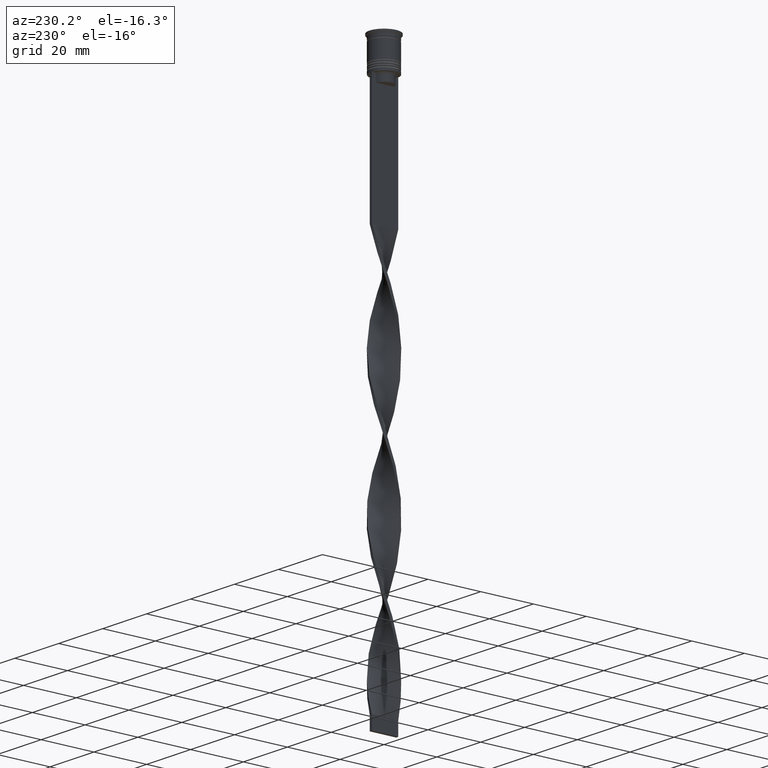
[diagram: clean part render]
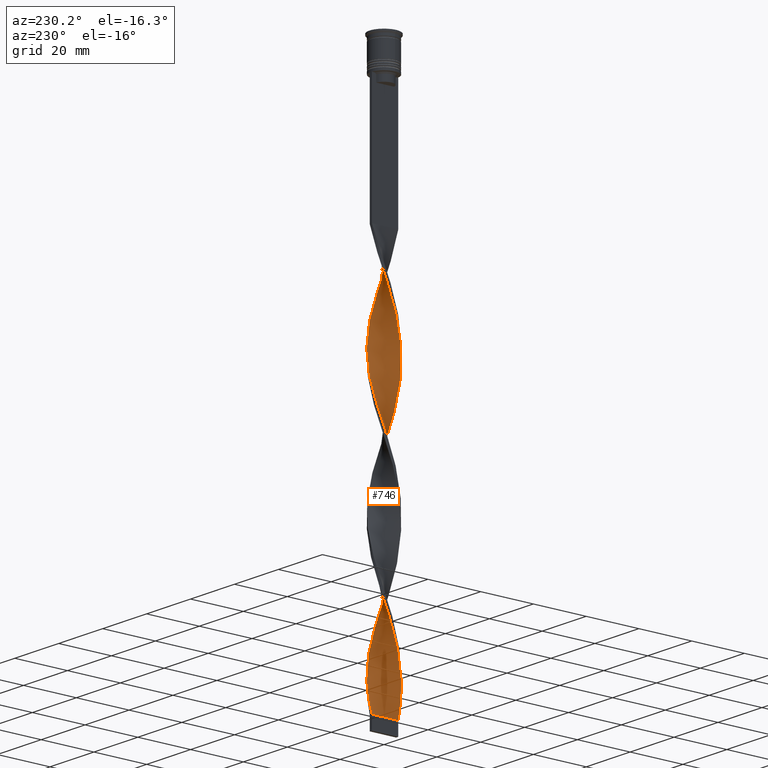
[diagram: same view with one face highlighted and labeled with its STEP entity id]
A machine part, auxiliary view. The second image highlights one B-rep face of the part: STEP entity #746.
In plain terms, the highlighted face is a freeform B-spline surface patch.
Its self-contained STEP definition (entity closure, byte-faithful):
#6 = CARTESIAN_POINT ( 'NONE',  ( 4.291403454590825284, -2.614164568256161836, -172.4411764705882035 ) ) ;
#15 = CARTESIAN_POINT ( 'NONE',  ( 4.863729793964998827, -1.345712789752187000, -176.8235294117647243 ) ) ;
#27 = CARTESIAN_POINT ( 'NONE',  ( -2.207052246521973515, -4.514301760086746995, -149.0686274509803866 ) ) ;
#38 = CARTESIAN_POINT ( 'NONE',  ( -5.021420494578371141, -0.5021420494578362481, -133.0000000000000000 ) ) ;
#56 = CARTESIAN_POINT ( 'NONE',  ( 4.252947278887042160, 2.676273424560221770, -189.9705882352941160 ) ) ;
#68 = CARTESIAN_POINT ( 'NONE',  ( -3.426799919866744482, -3.704571868705844206, -97.94117647058824616 ) ) ;
#70 = CARTESIAN_POINT ( 'NONE',  ( 3.688768818211569211, 3.412181795536400664, -93.55882352941176805 ) ) ;
#95 = CARTESIAN_POINT ( 'NONE',  ( 0.8912038472716534709, 4.967148691534572613, -203.1176470588235361 ) ) ;
#108 = CARTESIAN_POINT ( 'NONE',  ( 4.945959710900135420, -0.8874021287740040398, -78.95098039215686470 ) ) ;
#116 = CARTESIAN_POINT ( 'NONE',  ( -4.863729793964998827, 1.345712789752186778, -127.1568627450980102 ) ) ;
#128 = CARTESIAN_POINT ( 'NONE',  ( -4.291403454590827060, -2.614164568256162280, -93.55882352941176805 ) ) ;
#129 = CARTESIAN_POINT ( 'NONE',  ( -4.863729793965000603, -1.345712789752187222, -188.5098039215686185 ) ) ;
#145 = CARTESIAN_POINT ( 'NONE',  ( 4.932536701743522656, -0.9592088854640269391, -131.5392156862745310 ) ) ;
#146 = CARTESIAN_POINT ( 'NONE',  ( 1.410234138924802538, -4.822990739511222813, -61.42156862745097357 ) ) ;
#148 = CARTESIAN_POINT ( 'NONE',  ( -0.03668176878985203448, 5.046331823121015248, -106.7058823529412024 ) ) ;
#165 = CARTESIAN_POINT ( 'NONE',  ( 4.291403454590827948, 2.614164568256161836, -143.2254901960784537 ) ) ;
#166 = CARTESIAN_POINT ( 'NONE',  ( -2.998973759622457269, 4.031892407926575217, -169.5196078431372371 ) ) ;
#189 = CARTESIAN_POINT ( 'NONE',  ( -4.533641475362164996, -2.216507476658135189, -191.4313725490196134 ) ) ;
#190 = CARTESIAN_POINT ( 'NONE',  ( -4.945959710900137196, -0.8874021287740051500, -187.0490196078431211 ) ) ;
#207 = CARTESIAN_POINT ( 'NONE',  ( -0.9633182312101484790, -4.953668176878986529, -206.0392156862745026 ) ) ;
#208 = CARTESIAN_POINT ( 'NONE',  ( -5.024805061206825130, 0.03652529083100775065, -184.1274509803921546 ) ) ;
#210 = CARTESIAN_POINT ( 'NONE',  ( -3.057269382251586176, -3.987869597209393824, -99.40196078431372939 ) ) ;
#226 = CARTESIAN_POINT ( 'NONE',  ( -1.410234138924802982, -4.822990739511224589, -204.5784313725490335 ) ) ;
#227 = CARTESIAN_POINT ( 'NONE',  ( -2.625363907848424105, 4.309788251477359999, -168.0588235294117680 ) ) ;
#229 = CARTESIAN_POINT ( 'NONE',  ( 1.339972216233587865, -4.842981980115355967, -114.0098039215686185 ) ) ;
#247 = CARTESIAN_POINT ( 'NONE',  ( 0.9633182312101491451, 4.953668176878986529, -156.3725490196078454 ) ) ;
#248 = CARTESIAN_POINT ( 'NONE',  ( -4.533641475362164996, -2.216507476658135189, -92.09803921568628482 ) ) ;
#270 = CARTESIAN_POINT ( 'NONE',  ( -3.426799919866744037, -3.704571868705844206, -97.94117647058824616 ) ) ;
#274 = CARTESIAN_POINT ( 'NONE',  ( -5.021420494578372029, -0.5021420494578362481, -133.0000000000000000 ) ) ;
#290 = CARTESIAN_POINT ( 'NONE',  ( -4.932536701743521768, 0.9592088854640273832, -81.87254901960783116 ) ) ;
#296 = CARTESIAN_POINT ( 'NONE',  ( -3.372583611396488656, -3.753996564375789990, -144.6862745098039227 ) ) ;
#317 = EDGE_LOOP ( 'NONE', ( #2156, #1689, #1492, #2216 ) ) ;
#319 = CARTESIAN_POINT ( 'NONE',  ( -2.687738844636428759, 4.271167325712942997, -115.4705882352941018 ) ) ;
#322 = CARTESIAN_POINT ( 'NONE',  ( 0.03668176878985105610, 5.046331823121016136, -59.96078431372549034 ) ) ;
#339 = CARTESIAN_POINT ( 'NONE',  ( 4.698685634663579691, -1.781110133205159762, -175.3627450980391984 ) ) ;
#345 = CARTESIAN_POINT ( 'NONE',  ( -4.500940532747438105, -2.282179822423428650, -138.8431372549019045 ) ) ;
#350 = CARTESIAN_POINT ( 'NONE',  ( 4.049165433819487347, 3.011821659854193811, -144.6862745098039227 ) ) ;
#354 = EDGE_CURVE ( 'NONE', #2565, #764, #1888, .T. ) ;
#364 = CARTESIAN_POINT ( 'NONE',  ( 2.998973759622456825, 4.031892407926573441, -195.8137254901960773 ) ) ;
#374 = CARTESIAN_POINT ( 'NONE',  ( 0.8912038472716534709, 4.967148691534572613, -103.7843137254901933 ) ) ;
#375 = CARTESIAN_POINT ( 'NONE',  ( -0.03668176878985203448, 5.046331823121015248, -106.7058823529411882 ) ) ;
#383 = CARTESIAN_POINT ( 'NONE',  ( 3.426799919866742705, -3.704571868705843318, -168.0588235294117680 ) ) ;
#396 = CARTESIAN_POINT ( 'NONE',  ( 0.4272610392408998647, -5.006740257327794374, -111.0882352941176379 ) ) ;
#397 = CARTESIAN_POINT ( 'NONE',  ( -3.426799919866744037, -3.704571868705844206, -197.2745098039215463 ) ) ;
#400 = CARTESIAN_POINT ( 'NONE',  ( 5.028189627835276454, -0.4290914677958224122, -80.41176470588234793 ) ) ;
#406 = CARTESIAN_POINT ( 'NONE',  ( 3.688768818211569211, 3.412181795536400664, -192.8921568627450824 ) ) ;
#410 = EDGE_CURVE ( 'NONE', #2565, #1712, #2218, .T. ) ;
#433 = CARTESIAN_POINT ( 'NONE',  ( 4.252947278887044824, -2.676273424560221770, -125.6960784313725412 ) ) ;
#434 = CARTESIAN_POINT ( 'NONE',  ( 4.049165433819487347, -3.011821659854191147, -71.64705882352943433 ) ) ;
#453 = CARTESIAN_POINT ( 'NONE',  ( -1.857150046639457708, -4.692313302143463538, -103.7843137254901791 ) ) ;
#469 = CARTESIAN_POINT ( 'NONE',  ( -5.024805061206825130, 0.03652529083100775065, -184.1274509803921546 ) ) ;
#490 = CARTESIAN_POINT ( 'NONE',  ( -4.843652908908672394, 1.416275721470217741, -179.7450980392157476 ) ) ;
#491 = CARTESIAN_POINT ( 'NONE',  ( -4.500940532747438994, 2.282179822423430871, -176.8235294117647243 ) ) ;
#512 = CARTESIAN_POINT ( 'NONE',  ( 4.533641475362164996, 2.216507476658134301, -141.7647058823529562 ) ) ;
#513 = CARTESIAN_POINT ( 'NONE',  ( 0.9633182312101491451, 4.953668176878986529, -156.3725490196078454 ) ) ;
#515 = CARTESIAN_POINT ( 'NONE',  ( -4.843652908908672394, 1.416275721470217963, -80.41176470588234793 ) ) ;
#525 = CARTESIAN_POINT ( 'NONE',  ( 1.788740585195521593, 4.718815268696137544, -200.1960784313725696 ) ) ;
#533 = CARTESIAN_POINT ( 'NONE',  ( 1.857150046639458152, 4.692313302143463538, -153.4509803921568789 ) ) ;
#534 = CARTESIAN_POINT ( 'NONE',  ( -4.863729793965000603, -1.345712789752187222, -89.17647058823527573 ) ) ;
#550 = CARTESIAN_POINT ( 'NONE',  ( 4.945959710900137196, 0.8874021287740044839, -137.3823529411764639 ) ) ;
#570 = CARTESIAN_POINT ( 'NONE',  ( 4.252947278887044824, -2.676273424560221770, -125.6960784313725412 ) ) ;
#577 = CARTESIAN_POINT ( 'NONE',  ( -4.672296720828052585, -1.849227771946823307, -137.3823529411764639 ) ) ;
#594 = CARTESIAN_POINT ( 'NONE',  ( 2.207052246521972183, -4.514301760086749660, -116.9313725490195992 ) ) ;
#597 = CARTESIAN_POINT ( 'NONE',  ( 1.410234138924802538, -4.822990739511222813, -160.7549019607842808 ) ) ;
#619 = CARTESIAN_POINT ( 'NONE',  ( -4.533641475362163220, 2.216507476658134745, -124.2352941176470580 ) ) ;
#638 = CARTESIAN_POINT ( 'NONE',  ( 3.372583611396490433, 3.753996564375789102, -194.3529411764705799 ) ) ;
#645 = CARTESIAN_POINT ( 'NONE',  ( -1.339972216233586755, -4.842981980115355078, -151.9901960784313530 ) ) ;
#656 = CARTESIAN_POINT ( 'NONE',  ( 0.9633182312101489231, -4.953668176878983864, -59.96078431372549034 ) ) ;
#661 = CARTESIAN_POINT ( 'NONE',  ( 3.372583611396490877, 3.753996564375789102, -194.3529411764705799 ) ) ;
#669 = CARTESIAN_POINT ( 'NONE',  ( -0.9633182312101485900, -4.953668176878986529, -206.0392156862745026 ) ) ;
#671 = CARTESIAN_POINT ( 'NONE',  ( 4.004954025026647102, 3.070367026697015778, -92.09803921568628482 ) ) ;
#674 = CARTESIAN_POINT ( 'NONE',  ( 0.4272610392409007529, 5.006740257327792598, -105.2450980392156765 ) ) ;
#680 = CARTESIAN_POINT ( 'NONE',  ( -0.03668176878985203448, 5.046331823121015248, -206.0392156862745026 ) ) ;
#689 = CARTESIAN_POINT ( 'NONE',  ( -4.049165433819489124, -3.011821659854192035, -95.01960784313726549 ) ) ;
#693 = CARTESIAN_POINT ( 'NONE',  ( -0.4999999999999993339, 4.999999999999999112, -207.5000000000000000 ) ) ;
#699 = CARTESIAN_POINT ( 'NONE',  ( -0.4272610392408992541, -5.006740257327792598, -154.9117647058823479 ) ) ;
#709 = CARTESIAN_POINT ( 'NONE',  ( -4.672296720828054362, 1.849227771946823751, -78.95098039215686470 ) ) ;
#710 = CARTESIAN_POINT ( 'NONE',  ( 4.533641475362163220, -2.216507476658133413, -74.56862745098038658 ) ) ;
#712 = CARTESIAN_POINT ( 'NONE',  ( 1.410234138924802538, -4.822990739511222813, -61.42156862745097357 ) ) ;
#718 = CARTESIAN_POINT ( 'NONE',  ( -2.998973759622455493, -4.031892407926574329, -146.1470588235294201 ) ) ;
#726 = CARTESIAN_POINT ( 'NONE',  ( 3.372583611396492209, -3.753996564375789990, -121.3137254901960773 ) ) ;
#727 = CARTESIAN_POINT ( 'NONE',  ( -3.737982676843116803, -3.358196764280017010, -195.8137254901960773 ) ) ;
#730 = CARTESIAN_POINT ( 'NONE',  ( 0.4272610392409007529, 5.006740257327792598, -105.2450980392156765 ) ) ;
#746 = ADVANCED_FACE ( 'NONE', ( #2873 ), #1245, .T. ) ;
#751 = CARTESIAN_POINT ( 'NONE',  ( 4.672296720828054362, -1.849227771946825527, -128.6176470588235361 ) ) ;
#764 = VERTEX_POINT ( 'NONE', #1325 ) ;
#772 = CARTESIAN_POINT ( 'NONE',  ( 5.024805061206825130, -0.03652529083100948537, -134.4607843137254974 ) ) ;
#789 = CARTESIAN_POINT ( 'NONE',  ( 3.426799919866744926, 3.704571868705843762, -147.6078431372548891 ) ) ;
#790 = CARTESIAN_POINT ( 'NONE',  ( -0.4272610392409009750, 5.006740257327794374, -160.7549019607842808 ) ) ;
#834 = CARTESIAN_POINT ( 'NONE',  ( 2.272444445637943566, 4.481740313928203712, -151.9901960784313530 ) ) ;
#836 = CARTESIAN_POINT ( 'NONE',  ( -2.625363907848424105, 4.309788251477359999, -68.72549019607842524 ) ) ;
#855 = CARTESIAN_POINT ( 'NONE',  ( -1.339972216233586977, 4.842981980115355967, -163.6764705882352757 ) ) ;
#856 = CARTESIAN_POINT ( 'NONE',  ( -4.004954025026648878, 3.070367026697015778, -74.56862745098038658 ) ) ;
#869 = CARTESIAN_POINT ( 'NONE',  ( -4.049165433819488236, 3.011821659854190703, -121.3137254901960631 ) ) ;
#875 = CARTESIAN_POINT ( 'NONE',  ( 3.688768818211570100, -3.412181795536402884, -122.7745098039215605 ) ) ;
#883 = CARTESIAN_POINT ( 'NONE',  ( 0.03668176878985138917, -5.046331823121015248, -156.3725490196078454 ) ) ;
#898 = CARTESIAN_POINT ( 'NONE',  ( -1.410234138924802982, -4.822990739511224589, -105.2450980392156765 ) ) ;
#915 = CARTESIAN_POINT ( 'NONE',  ( -0.4999999999999993339, 4.999999999999999112, -207.5000000000000000 ) ) ;
#921 = CARTESIAN_POINT ( 'NONE',  ( 4.291403454590827948, 2.614164568256161836, -143.2254901960784537 ) ) ;
#927 = CARTESIAN_POINT ( 'NONE',  ( -4.698685634663580579, 1.781110133205158430, -125.6960784313725412 ) ) ;
#948 = CARTESIAN_POINT ( 'NONE',  ( 3.688768818211569211, 3.412181795536400664, -192.8921568627450824 ) ) ;
#956 = CARTESIAN_POINT ( 'NONE',  ( 1.857150046639456153, -4.692313302143462650, -162.2156862745098351 ) ) ;
#964 = CARTESIAN_POINT ( 'NONE',  ( -5.024805061206823353, -0.03652529083100779922, -131.5392156862745310 ) ) ;
#967 = CARTESIAN_POINT ( 'NONE',  ( 1.788740585195521593, 4.718815268696137544, -100.8627450980392126 ) ) ;
#973 = CARTESIAN_POINT ( 'NONE',  ( 3.737982676843115026, -3.358196764280016566, -169.5196078431372371 ) ) ;
#985 = CARTESIAN_POINT ( 'NONE',  ( 1.788740585195521593, 4.718815268696137544, -100.8627450980392126 ) ) ;
#986 = CARTESIAN_POINT ( 'NONE',  ( 4.500940532747436329, 2.282179822423429982, -89.17647058823528994 ) ) ;
#991 = CARTESIAN_POINT ( 'NONE',  ( 4.698685634663579691, -1.781110133205159762, -175.3627450980391984 ) ) ;
#1001 = CARTESIAN_POINT ( 'NONE',  ( -4.533641475362164996, -2.216507476658135189, -191.4313725490196134 ) ) ;
#1003 = CARTESIAN_POINT ( 'NONE',  ( 3.372583611396490877, 3.753996564375789102, -95.01960784313725128 ) ) ;
#1017 = CARTESIAN_POINT ( 'NONE',  ( -4.500940532747438105, 2.282179822423430871, -77.49019607843136725 ) ) ;
#1018 = CARTESIAN_POINT ( 'NONE',  ( 4.291403454590825284, -2.614164568256161836, -73.10784313725488914 ) ) ;
#1029 = CARTESIAN_POINT ( 'NONE',  ( 0.9633182312101489231, -4.953668176878984752, -159.2941176470588118 ) ) ;
#1037 = CARTESIAN_POINT ( 'NONE',  ( -5.021420494578373805, 0.5021420494578375804, -83.33333333333332860 ) ) ;
#1038 = CARTESIAN_POINT ( 'NONE',  ( -1.410234138924802982, -4.822990739511224589, -204.5784313725490335 ) ) ;
#1041 = CARTESIAN_POINT ( 'NONE',  ( -3.426799919866742261, 3.704571868705843318, -118.3921568627451109 ) ) ;
#1042 = CARTESIAN_POINT ( 'NONE',  ( 0.5000000000000000000, -4.999999999999999112, -58.50000000000000000 ) ) ;
#1057 = CARTESIAN_POINT ( 'NONE',  ( 3.688768818211570100, -3.412181795536402884, -122.7745098039215605 ) ) ;
#1075 = CARTESIAN_POINT ( 'NONE',  ( -3.057269382251586176, -3.987869597209393824, -198.7352941176470722 ) ) ;
#1094 = CARTESIAN_POINT ( 'NONE',  ( 2.687738844636429203, 4.271167325712945662, -150.5294117647058840 ) ) ;
#1096 = CARTESIAN_POINT ( 'NONE',  ( 0.03668176878985105610, 5.046331823121016136, -59.96078431372549744 ) ) ;
#1116 = CARTESIAN_POINT ( 'NONE',  ( -1.788740585195521815, 4.718815268696139320, -65.80392156862747299 ) ) ;
#1134 = CARTESIAN_POINT ( 'NONE',  ( -3.688768818211570100, 3.412181795536402440, -172.4411764705882035 ) ) ;
#1135 = CARTESIAN_POINT ( 'NONE',  ( 0.03668176878985105610, 5.046331823121016136, -159.2941176470588118 ) ) ;
#1137 = CARTESIAN_POINT ( 'NONE',  ( -5.021420494578372917, 0.5021420494578375804, -83.33333333333332860 ) ) ;
#1154 = CARTESIAN_POINT ( 'NONE',  ( -0.4272610392409009750, 5.006740257327794374, -160.7549019607842808 ) ) ;
#1167 = EDGE_CURVE ( 'NONE', #764, #3300, #1955, .T. ) ;
#1173 = CARTESIAN_POINT ( 'NONE',  ( -4.291403454590827060, -2.614164568256162280, -93.55882352941176805 ) ) ;
#1176 = CARTESIAN_POINT ( 'NONE',  ( -4.945959710900135420, 0.8874021287740058161, -128.6176470588235361 ) ) ;
#1187 = CARTESIAN_POINT ( 'NONE',  ( -4.698685634663580579, 1.781110133205158430, -125.6960784313725412 ) ) ;
#1193 = CARTESIAN_POINT ( 'NONE',  ( -5.028189627835278230, -0.4290914677958230783, -86.25490196078432348 ) ) ;
#1199 = CARTESIAN_POINT ( 'NONE',  ( -4.252947278887042160, -2.676273424560223546, -140.3039215686274588 ) ) ;
#1214 = CARTESIAN_POINT ( 'NONE',  ( 5.024805061206825130, -0.03652529083100948537, -134.4607843137254974 ) ) ;
#1220 = CARTESIAN_POINT ( 'NONE',  ( -2.272444445637943122, 4.481740313928201935, -114.0098039215686185 ) ) ;
#1236 = CARTESIAN_POINT ( 'NONE',  ( 3.057269382251585288, -3.987869597209392936, -166.5980392156862706 ) ) ;
#1243 = CARTESIAN_POINT ( 'NONE',  ( 5.024805061206822465, 0.03652529083100720941, -181.2058823529411598 ) ) ;
#1245 =( BOUNDED_SURFACE ( )  B_SPLINE_SURFACE ( 1, 2, ( 
 ( #3484, #1096, #2912, #3850, #3868, #1116, #2325, #836, #1772, #2991, #3927, #856, #2090, #2684, #1751, #515, #290, #1137, #1429, #1193, #2346, #534, #2968, #248, #1173, #1470, #1452, #270, #210, #2706, #1512, #2666, #898, #2645, #3580, #1491, #2404, #2052, #229, #3620, #594, #2365, #3279, #2383, #875, #3315, #570, #2731, #3599, #1794, #3969, #3013, #1214, #3642, #2113, #3034, #2428, #3667, #921, #350, #3603, #1776, #2910, #3556, #834, #533, #2643, #513, #2967, #1135, #790, #3536, #2344, #2605, #3235, #227, #166, #2307, #3848, #2009, #1736, #491, #2952, #1411, #1714, #2933, #208, #3578, #190, #129, #1355, #1001, #1657, #3200, #727, #397, #2214, #3177, #2255, #3441, #1038, #669, #3828 ),
 ( #1913, #2567, #146, #1950, #1616, #1316, #2269, #1371, #3419, #434, #1018, #710, #1932, #3158, #108, #400, #3754, #1278, #2796, #2493, #3737, #3119, #2815, #671, #70, #1003, #1576, #2198, #1299, #985, #3421, #374, #730, #148, #1953, #3505, #1373, #1661, #2895, #2587, #3795, #1041, #3614, #869, #3031, #2724, #1187, #116, #1343, #3090, #1285, #38, #3390, #1904, #1884, #345, #3449, #2784, #3428, #3701, #718, #1305, #3107, #3782, #645, #2226, #699, #2480, #3722, #1029, #3146, #956, #1264, #2802, #2499, #383, #973, #2246, #1605, #2164, #991, #15, #2186, #3410, #1243, #1586, #2821, #2458, #2515, #1867, #56, #1564, #406, #661, #364, #3742, #2205, #2835, #1922, #95, #1939, #680, #3127 ) ),
 .UNSPECIFIED., .F., .F., .T. ) 
 B_SPLINE_SURFACE_WITH_KNOTS ( ( 2, 2 ),
 ( 3, 2, 2, 2, 2, 2, 2, 2, 2, 2, 2, 2, 2, 2, 2, 2, 2, 2, 2, 2, 2, 2, 2, 2, 2, 2, 2, 2, 2, 2, 2, 2, 2, 2, 2, 2, 2, 2, 2, 2, 2, 2, 2, 2, 2, 2, 2, 2, 2, 2, 2, 3 ),
 ( 0.000000000000000000, 1.000000000000000000 ),
 ( 0.000000000000000000, 0.01470588235294117627, 0.02941176470588235253, 0.04411764705882353227, 0.05882352941176470507, 0.07352941176470588480, 0.08823529411764706454, 0.1029411764705882304, 0.1176470588235294101, 0.1323529411764705899, 0.1470588235294117696, 0.1617647058823529493, 0.1764705882352941291, 0.1911764705882352811, 0.2058823529411764608, 0.2205882352941176405, 0.2352941176470588203, 0.2500000000000000000, 0.2647058823529411797, 0.2794117647058823595, 0.2941176470588235392, 0.3088235294117647189, 0.3235294117647058987, 0.3382352941176470784, 0.3529411764705882582, 0.3676470588235294379, 0.3823529411764705621, 0.3970588235294117418, 0.4117647058823529216, 0.4264705882352941013, 0.4411764705882352811, 0.4558823529411764608, 0.4705882352941176405, 0.4852941176470588203, 0.5000000000000000000, 0.5147058823529411242, 0.5294117647058823595, 0.5441176470588234837, 0.5588235294117647189, 0.5735294117647058432, 0.5882352941176470784, 0.6029411764705882026, 0.6176470588235294379, 0.6323529411764705621, 0.6470588235294117974, 0.6617647058823529216, 0.6764705882352941568, 0.6911764705882352811, 0.7058823529411765163, 0.7205882352941176405, 0.7352941176470588758, 0.7500000000000000000 ),
 .UNSPECIFIED. ) 
 GEOMETRIC_REPRESENTATION_ITEM ( )  RATIONAL_B_SPLINE_SURFACE ( (
 ( 1.000000000000000000, 0.9957341762950344677, 1.000000000000000000, 0.9957341762950344677, 1.000000000000000000, 0.9957341762950344677, 1.000000000000000000, 0.9957341762950344677, 1.000000000000000000, 0.9957341762950344677, 1.000000000000000000, 0.9957341762950344677, 1.000000000000000000, 0.9957341762950344677, 1.000000000000000000, 0.9957341762950344677, 1.000000000000000000, 0.9957341762950344677, 1.000000000000000000, 0.9957341762950344677, 1.000000000000000000, 0.9957341762950344677, 1.000000000000000000, 0.9957341762950344677, 1.000000000000000000, 0.9957341762950344677, 1.000000000000000000, 0.9957341762950344677, 1.000000000000000000, 0.9957341762950344677, 1.000000000000000000, 0.9957341762950344677, 1.000000000000000000, 0.9957341762950344677, 1.000000000000000000, 0.9957341762950344677, 1.000000000000000000, 0.9957341762950344677, 1.000000000000000000, 0.9957341762950344677, 1.000000000000000000, 0.9957341762950344677, 1.000000000000000000, 0.9957341762950344677, 1.000000000000000000, 0.9957341762950344677, 1.000000000000000000, 0.9957341762950344677, 1.000000000000000000, 0.9957341762950344677, 1.000000000000000000, 0.9957341762950344677, 1.000000000000000000, 0.9957341762950344677, 1.000000000000000000, 0.9957341762950344677, 1.000000000000000000, 0.9957341762950344677, 1.000000000000000000, 0.9957341762950344677, 1.000000000000000000, 0.9957341762950344677, 1.000000000000000000, 0.9957341762950344677, 1.000000000000000000, 0.9957341762950344677, 1.000000000000000000, 0.9957341762950344677, 1.000000000000000000, 0.9957341762950344677, 1.000000000000000000, 0.9957341762950344677, 1.000000000000000000, 0.9957341762950344677, 1.000000000000000000, 0.9957341762950344677, 1.000000000000000000, 0.9957341762950344677, 1.000000000000000000, 0.9957341762950344677, 1.000000000000000000, 0.9957341762950344677, 1.000000000000000000, 0.9957341762950344677, 1.000000000000000000, 0.9957341762950344677, 1.000000000000000000, 0.9957341762950344677, 1.000000000000000000, 0.9957341762950344677, 1.000000000000000000, 0.9957341762950344677, 1.000000000000000000, 0.9957341762950344677, 1.000000000000000000, 0.9957341762950344677, 1.000000000000000000, 0.9957341762950344677, 1.000000000000000000, 0.9957341762950344677, 1.000000000000000000, 0.9957341762950344677, 1.000000000000000000),
 ( 1.000000000000000000, 0.9957341762950344677, 1.000000000000000000, 0.9957341762950344677, 1.000000000000000000, 0.9957341762950344677, 1.000000000000000000, 0.9957341762950344677, 1.000000000000000000, 0.9957341762950344677, 1.000000000000000000, 0.9957341762950344677, 1.000000000000000000, 0.9957341762950344677, 1.000000000000000000, 0.9957341762950344677, 1.000000000000000000, 0.9957341762950344677, 1.000000000000000000, 0.9957341762950344677, 1.000000000000000000, 0.9957341762950344677, 1.000000000000000000, 0.9957341762950344677, 1.000000000000000000, 0.9957341762950344677, 1.000000000000000000, 0.9957341762950344677, 1.000000000000000000, 0.9957341762950344677, 1.000000000000000000, 0.9957341762950344677, 1.000000000000000000, 0.9957341762950344677, 1.000000000000000000, 0.9957341762950344677, 1.000000000000000000, 0.9957341762950344677, 1.000000000000000000, 0.9957341762950344677, 1.000000000000000000, 0.9957341762950344677, 1.000000000000000000, 0.9957341762950344677, 1.000000000000000000, 0.9957341762950344677, 1.000000000000000000, 0.9957341762950344677, 1.000000000000000000, 0.9957341762950344677, 1.000000000000000000, 0.9957341762950344677, 1.000000000000000000, 0.9957341762950344677, 1.000000000000000000, 0.9957341762950344677, 1.000000000000000000, 0.9957341762950344677, 1.000000000000000000, 0.9957341762950344677, 1.000000000000000000, 0.9957341762950344677, 1.000000000000000000, 0.9957341762950344677, 1.000000000000000000, 0.9957341762950344677, 1.000000000000000000, 0.9957341762950344677, 1.000000000000000000, 0.9957341762950344677, 1.000000000000000000, 0.9957341762950344677, 1.000000000000000000, 0.9957341762950344677, 1.000000000000000000, 0.9957341762950344677, 1.000000000000000000, 0.9957341762950344677, 1.000000000000000000, 0.9957341762950344677, 1.000000000000000000, 0.9957341762950344677, 1.000000000000000000, 0.9957341762950344677, 1.000000000000000000, 0.9957341762950344677, 1.000000000000000000, 0.9957341762950344677, 1.000000000000000000, 0.9957341762950344677, 1.000000000000000000, 0.9957341762950344677, 1.000000000000000000, 0.9957341762950344677, 1.000000000000000000, 0.9957341762950344677, 1.000000000000000000, 0.9957341762950344677, 1.000000000000000000, 0.9957341762950344677, 1.000000000000000000, 0.9957341762950344677, 1.000000000000000000) ) ) 
 REPRESENTATION_ITEM ( '' )  SURFACE ( )  );
#1255 = CARTESIAN_POINT ( 'NONE',  ( -3.688768818211570100, -3.412181795536400664, -143.2254901960784537 ) ) ;
#1258 = CARTESIAN_POINT ( 'NONE',  ( 5.024805061206822465, 0.03652529083100720941, -81.87254901960783116 ) ) ;
#1264 = CARTESIAN_POINT ( 'NONE',  ( 2.272444445637942234, -4.481740313928202823, -163.6764705882352757 ) ) ;
#1278 = CARTESIAN_POINT ( 'NONE',  ( 5.021420494578371141, 0.5021420494578369143, -83.33333333333332860 ) ) ;
#1285 = CARTESIAN_POINT ( 'NONE',  ( -5.024805061206823353, -0.03652529083100779922, -131.5392156862745310 ) ) ;
#1297 = CARTESIAN_POINT ( 'NONE',  ( -1.410234138924802982, -4.822990739511224589, -105.2450980392156765 ) ) ;
#1299 = CARTESIAN_POINT ( 'NONE',  ( 2.207052246521970851, 4.514301760086748772, -99.40196078431372939 ) ) ;
#1300 = CARTESIAN_POINT ( 'NONE',  ( 4.049165433819487347, -3.011821659854190703, -71.64705882352942012 ) ) ;
#1305 = CARTESIAN_POINT ( 'NONE',  ( -2.625363907848423661, -4.309788251477358223, -147.6078431372548891 ) ) ;
#1315 = CARTESIAN_POINT ( 'NONE',  ( -5.028189627835278230, -0.4290914677958230783, -86.25490196078432348 ) ) ;
#1316 = CARTESIAN_POINT ( 'NONE',  ( 2.687738844636428315, -4.271167325712943885, -65.80392156862747299 ) ) ;
#1325 = CARTESIAN_POINT ( 'NONE',  ( 0.5000000000000000000, 5.000000000000000888, -58.50000000000000000 ) ) ;
#1329 = DIRECTION ( 'NONE',  ( 0.000000000000000000, 1.000000000000000000, 0.000000000000000000 ) ) ;
#1333 = CARTESIAN_POINT ( 'NONE',  ( -2.625363907848424105, 4.309788251477359999, -68.72549019607842524 ) ) ;
#1340 = CARTESIAN_POINT ( 'NONE',  ( -0.5000000000000006661, -5.000000000000000888, -207.5000000000000000 ) ) ;
#1343 = CARTESIAN_POINT ( 'NONE',  ( -4.945959710900135420, 0.8874021287740058161, -128.6176470588235361 ) ) ;
#1354 = CARTESIAN_POINT ( 'NONE',  ( -0.5000000000000006661, -5.000000000000000888, -108.1666666666666572 ) ) ;
#1355 = CARTESIAN_POINT ( 'NONE',  ( -4.698685634663581467, -1.781110133205160206, -189.9705882352941160 ) ) ;
#1371 = CARTESIAN_POINT ( 'NONE',  ( 3.426799919866742705, -3.704571868705843318, -68.72549019607842524 ) ) ;
#1373 = CARTESIAN_POINT ( 'NONE',  ( -1.410234138924801428, 4.822990739511222813, -111.0882352941176379 ) ) ;
#1387 = CARTESIAN_POINT ( 'NONE',  ( -1.788740585195521815, 4.718815268696139320, -165.1372549019608016 ) ) ;
#1410 = CARTESIAN_POINT ( 'NONE',  ( 0.5000000000000000000, 5.000000000000000888, -157.8333333333333144 ) ) ;
#1411 = CARTESIAN_POINT ( 'NONE',  ( -4.843652908908672394, 1.416275721470217963, -179.7450980392157192 ) ) ;
#1429 = CARTESIAN_POINT ( 'NONE',  ( -5.024805061206825130, 0.03652529083100775065, -84.79411764705882604 ) ) ;
#1442 = CARTESIAN_POINT ( 'NONE',  ( 1.339972216233586311, 4.842981980115355078, -201.6568627450980387 ) ) ;
#1451 = CARTESIAN_POINT ( 'NONE',  ( 1.857150046639458152, 4.692313302143463538, -153.4509803921568789 ) ) ;
#1452 = CARTESIAN_POINT ( 'NONE',  ( -3.737982676843116803, -3.358196764280017010, -96.48039215686274872 ) ) ;
#1469 = CARTESIAN_POINT ( 'NONE',  ( -2.625363907848424105, 4.309788251477359999, -168.0588235294117680 ) ) ;
#1470 = CARTESIAN_POINT ( 'NONE',  ( -4.049165433819489124, -3.011821659854192479, -95.01960784313725128 ) ) ;
#1475 = CARTESIAN_POINT ( 'NONE',  ( 1.857150046639456153, -4.692313302143462650, -162.2156862745098351 ) ) ;
#1491 = CARTESIAN_POINT ( 'NONE',  ( -0.03668176878985068140, -5.046331823121016136, -109.6274509803921546 ) ) ;
#1492 = ORIENTED_EDGE ( 'NONE', *, *, #3817, .F. ) ;
#1495 = CARTESIAN_POINT ( 'NONE',  ( 4.049165433819487347, -3.011821659854190703, -170.9803921568627629 ) ) ;
#1512 = CARTESIAN_POINT ( 'NONE',  ( -2.272444445637943122, -4.481740313928203712, -102.3235294117646959 ) ) ;
#1518 = CARTESIAN_POINT ( 'NONE',  ( 4.252947278887042160, 2.676273424560221770, -189.9705882352941160 ) ) ;
#1540 = CARTESIAN_POINT ( 'NONE',  ( -5.028189627835275566, 0.4290914677958205803, -130.0784313725490335 ) ) ;
#1542 = CARTESIAN_POINT ( 'NONE',  ( -1.788740585195521815, 4.718815268696139320, -65.80392156862745878 ) ) ;
#1557 = CARTESIAN_POINT ( 'NONE',  ( -0.4272610392408992541, -5.006740257327792598, -154.9117647058823479 ) ) ;
#1564 = CARTESIAN_POINT ( 'NONE',  ( 4.004954025026647102, 3.070367026697015778, -191.4313725490196134 ) ) ;
#1576 = CARTESIAN_POINT ( 'NONE',  ( 2.998973759622456825, 4.031892407926573441, -96.48039215686274872 ) ) ;
#1578 = CARTESIAN_POINT ( 'NONE',  ( 2.272444445637942234, -4.481740313928202823, -64.34313725490196134 ) ) ;
#1586 = CARTESIAN_POINT ( 'NONE',  ( 5.021420494578371141, 0.5021420494578369143, -182.6666666666666572 ) ) ;
#1598 = CARTESIAN_POINT ( 'NONE',  ( 4.698685634663579691, -1.781110133205159762, -76.02941176470586981 ) ) ;
#1605 = CARTESIAN_POINT ( 'NONE',  ( 4.291403454590825284, -2.614164568256161836, -172.4411764705882035 ) ) ;
#1615 = CARTESIAN_POINT ( 'NONE',  ( 2.207052246521972183, -4.514301760086749660, -116.9313725490195992 ) ) ;
#1616 = CARTESIAN_POINT ( 'NONE',  ( 2.272444445637942234, -4.481740313928202823, -64.34313725490196134 ) ) ;
#1618 = CARTESIAN_POINT ( 'NONE',  ( 1.857150046639456153, -4.692313302143462650, -62.88235294117647101 ) ) ;
#1633 = CARTESIAN_POINT ( 'NONE',  ( -4.843652908908672394, 1.416275721470217741, -80.41176470588234793 ) ) ;
#1656 = CARTESIAN_POINT ( 'NONE',  ( -2.207052246521971739, 4.514301760086749660, -67.26470588235292780 ) ) ;
#1657 = CARTESIAN_POINT ( 'NONE',  ( -4.291403454590827060, -2.614164568256162280, -192.8921568627450824 ) ) ;
#1661 = CARTESIAN_POINT ( 'NONE',  ( -1.857150046639456153, 4.692313302143462650, -112.5490196078431495 ) ) ;
#1662 = CARTESIAN_POINT ( 'NONE',  ( 2.687738844636428759, -4.271167325712942997, -65.80392156862745878 ) ) ;
#1678 = CARTESIAN_POINT ( 'NONE',  ( 0.8912038472716528048, -4.967148691534573501, -112.5490196078431495 ) ) ;
#1689 = ORIENTED_EDGE ( 'NONE', *, *, #410, .T. ) ;
#1692 = CARTESIAN_POINT ( 'NONE',  ( 3.057269382251587952, 3.987869597209392047, -149.0686274509803866 ) ) ;
#1694 = CARTESIAN_POINT ( 'NONE',  ( 0.4272610392409007529, 5.006740257327792598, -204.5784313725490335 ) ) ;
#1712 = VERTEX_POINT ( 'NONE', #915 ) ;
#1713 = CARTESIAN_POINT ( 'NONE',  ( -1.857150046639457708, -4.692313302143463538, -203.1176470588235361 ) ) ;
#1714 = CARTESIAN_POINT ( 'NONE',  ( -4.932536701743521768, 0.9592088854640273832, -181.2058823529411598 ) ) ;
#1718 = CARTESIAN_POINT ( 'NONE',  ( -0.03668176878985203448, 5.046331823121015248, -206.0392156862745026 ) ) ;
#1735 = CARTESIAN_POINT ( 'NONE',  ( -4.932536701743521768, 0.9592088854640273832, -181.2058823529411598 ) ) ;
#1736 = CARTESIAN_POINT ( 'NONE',  ( -4.252947278887043936, 2.676273424560223102, -175.3627450980391984 ) ) ;
#1750 = CARTESIAN_POINT ( 'NONE',  ( -4.291403454590827060, -2.614164568256162280, -192.8921568627450824 ) ) ;
#1751 = CARTESIAN_POINT ( 'NONE',  ( -4.672296720828054362, 1.849227771946823751, -78.95098039215686470 ) ) ;
#1771 = CARTESIAN_POINT ( 'NONE',  ( 4.698685634663580579, 1.781110133205161983, -140.3039215686274588 ) ) ;
#1772 = CARTESIAN_POINT ( 'NONE',  ( -2.998973759622457269, 4.031892407926575217, -70.18627450980390847 ) ) ;
#1776 = CARTESIAN_POINT ( 'NONE',  ( 3.426799919866744482, 3.704571868705843762, -147.6078431372548891 ) ) ;
#1794 = CARTESIAN_POINT ( 'NONE',  ( 4.843652908908673282, -1.416275721470216187, -130.0784313725490335 ) ) ;
#1799 = CARTESIAN_POINT ( 'NONE',  ( 0.9633182312101489231, -4.953668176878983864, -159.2941176470588118 ) ) ;
#1818 = CARTESIAN_POINT ( 'NONE',  ( -1.339972216233586755, -4.842981980115355078, -151.9901960784313530 ) ) ;
#1837 = CARTESIAN_POINT ( 'NONE',  ( 2.272444445637942234, -4.481740313928202823, -163.6764705882352757 ) ) ;
#1861 = CARTESIAN_POINT ( 'NONE',  ( -2.625363907848423661, -4.309788251477358223, -147.6078431372548891 ) ) ;
#1867 = CARTESIAN_POINT ( 'NONE',  ( 4.500940532747437217, 2.282179822423429982, -188.5098039215686185 ) ) ;
#1877 = CARTESIAN_POINT ( 'NONE',  ( -1.788740585195520039, -4.718815268696138432, -150.5294117647058840 ) ) ;
#1879 = CARTESIAN_POINT ( 'NONE',  ( 4.932536701743520879, 0.9592088854640268281, -84.79411764705882604 ) ) ;
#1884 = CARTESIAN_POINT ( 'NONE',  ( -4.672296720828052585, -1.849227771946823307, -137.3823529411764639 ) ) ;
#1888 = LINE ( 'NONE', #3113, #2782 ) ;
#1904 = CARTESIAN_POINT ( 'NONE',  ( -4.843652908908670618, -1.416275721470218185, -135.9215686274509665 ) ) ;
#1912 = CARTESIAN_POINT ( 'NONE',  ( 1.788740585195521371, -4.718815268696139320, -115.4705882352941018 ) ) ;
#1913 = CARTESIAN_POINT ( 'NONE',  ( 0.5000000000000000000, -4.999999999999999112, -58.50000000000000000 ) ) ;
#1922 = CARTESIAN_POINT ( 'NONE',  ( 1.339972216233586311, 4.842981980115355078, -201.6568627450980387 ) ) ;
#1932 = CARTESIAN_POINT ( 'NONE',  ( 4.698685634663579691, -1.781110133205159762, -76.02941176470586981 ) ) ;
#1934 = CARTESIAN_POINT ( 'NONE',  ( 4.945959710900135420, -0.8874021287740040398, -78.95098039215686470 ) ) ;
#1939 = CARTESIAN_POINT ( 'NONE',  ( 0.4272610392409007529, 5.006740257327792598, -204.5784313725490335 ) ) ;
#1949 = CARTESIAN_POINT ( 'NONE',  ( -2.687738844636430091, -4.271167325712943885, -100.8627450980392126 ) ) ;
#1950 = CARTESIAN_POINT ( 'NONE',  ( 1.857150046639456153, -4.692313302143462650, -62.88235294117647811 ) ) ;
#1953 = CARTESIAN_POINT ( 'NONE',  ( -0.4999999999999993339, 4.999999999999999112, -108.1666666666666572 ) ) ;
#1955 =( BOUNDED_CURVE ( )  B_SPLINE_CURVE ( 2, ( #3065, #322, #2813, #3440, #1970, #1542, #1656, #1333, #2509, #2583, #3827, #3502, #3751, #1017, #709, #1633, #3772, #1037, #2847, #1315, #2830, #2546, #2236, #2213, #128, #689, #2254, #68, #2140, #1949, #3461, #453, #1297, #2871, #1354, #3138, #396, #1678, #3811, #1912, #1615, #3157, #3482, #726, #1057, #3176, #433, #2566, #751, #2892, #145, #3294, #772, #3885, #550, #3847, #1771, #512, #165, #1989, #3535, #789, #1692, #1094, #2364, #1451, #3598, #247, #1410, #3257, #1154, #3214, #855, #1387, #2932, #1469, #2665, #2030, #1134, #2683, #3519, #3906, #2069, #490, #1735, #2909, #469, #2990, #2343, #2008, #2604, #189, #1750, #2966, #2306, #3278, #1075, #3577, #3234, #1713, #226, #207, #2626 ),
 .UNSPECIFIED., .F., .T. ) 
 B_SPLINE_CURVE_WITH_KNOTS ( ( 3, 2, 2, 2, 2, 2, 2, 2, 2, 2, 2, 2, 2, 2, 2, 2, 2, 2, 2, 2, 2, 2, 2, 2, 2, 2, 2, 2, 2, 2, 2, 2, 2, 2, 2, 2, 2, 2, 2, 2, 2, 2, 2, 2, 2, 2, 2, 2, 2, 2, 2, 3 ),
 ( 0.000000000000000000, 0.01470588235294117453, 0.02941176470588234906, 0.04411764705882353227, 0.05882352941176469813, 0.07352941176470588480, 0.08823529411764706454, 0.1029411764705882443, 0.1176470588235293963, 0.1323529411764705899, 0.1470588235294117696, 0.1617647058823529493, 0.1764705882352941291, 0.1911764705882352811, 0.2058823529411764885, 0.2205882352941176405, 0.2352941176470587925, 0.2500000000000000000, 0.2647058823529411797, 0.2794117647058823595, 0.2941176470588235392, 0.3088235294117647189, 0.3235294117647058987, 0.3382352941176470229, 0.3529411764705882582, 0.3676470588235294379, 0.3823529411764705621, 0.3970588235294117418, 0.4117647058823529771, 0.4264705882352941013, 0.4411764705882352811, 0.4558823529411764608, 0.4705882352941175850, 0.4852941176470588203, 0.5000000000000000000, 0.5147058823529411242, 0.5294117647058823595, 0.5441176470588234837, 0.5588235294117647189, 0.5735294117647058432, 0.5882352941176470784, 0.6029411764705882026, 0.6176470588235294379, 0.6323529411764705621, 0.6470588235294117974, 0.6617647058823529216, 0.6764705882352940458, 0.6911764705882351700, 0.7058823529411765163, 0.7205882352941176405, 0.7352941176470588758, 0.7500000000000000000 ),
 .UNSPECIFIED. ) 
 CURVE ( )  GEOMETRIC_REPRESENTATION_ITEM ( )  RATIONAL_B_SPLINE_CURVE ( ( 1.000000000000000000, 0.9957341762950344677, 1.000000000000000000, 0.9957341762950344677, 1.000000000000000000, 0.9957341762950344677, 1.000000000000000000, 0.9957341762950344677, 1.000000000000000000, 0.9957341762950344677, 1.000000000000000000, 0.9957341762950344677, 1.000000000000000000, 0.9957341762950344677, 1.000000000000000000, 0.9957341762950344677, 1.000000000000000000, 0.9957341762950344677, 1.000000000000000000, 0.9957341762950344677, 1.000000000000000000, 0.9957341762950344677, 1.000000000000000000, 0.9957341762950344677, 1.000000000000000000, 0.9957341762950344677, 1.000000000000000000, 0.9957341762950344677, 1.000000000000000000, 0.9957341762950344677, 1.000000000000000000, 0.9957341762950344677, 1.000000000000000000, 0.9957341762950344677, 1.000000000000000000, 0.9957341762950344677, 1.000000000000000000, 0.9957341762950344677, 1.000000000000000000, 0.9957341762950344677, 1.000000000000000000, 0.9957341762950344677, 1.000000000000000000, 0.9957341762950344677, 1.000000000000000000, 0.9957341762950344677, 1.000000000000000000, 0.9957341762950344677, 1.000000000000000000, 0.9957341762950344677, 1.000000000000000000, 0.9957341762950344677, 1.000000000000000000, 0.9957341762950344677, 1.000000000000000000, 0.9957341762950344677, 1.000000000000000000, 0.9957341762950344677, 1.000000000000000000, 0.9957341762950344677, 1.000000000000000000, 0.9957341762950344677, 1.000000000000000000, 0.9957341762950344677, 1.000000000000000000, 0.9957341762950344677, 1.000000000000000000, 0.9957341762950344677, 1.000000000000000000, 0.9957341762950344677, 1.000000000000000000, 0.9957341762950344677, 1.000000000000000000, 0.9957341762950344677, 1.000000000000000000, 0.9957341762950344677, 1.000000000000000000, 0.9957341762950344677, 1.000000000000000000, 0.9957341762950344677, 1.000000000000000000, 0.9957341762950344677, 1.000000000000000000, 0.9957341762950344677, 1.000000000000000000, 0.9957341762950344677, 1.000000000000000000, 0.9957341762950344677, 1.000000000000000000, 0.9957341762950344677, 1.000000000000000000, 0.9957341762950344677, 1.000000000000000000, 0.9957341762950344677, 1.000000000000000000, 0.9957341762950344677, 1.000000000000000000, 0.9957341762950344677, 1.000000000000000000, 0.9957341762950344677, 1.000000000000000000, 0.9957341762950344677, 1.000000000000000000 ) ) 
 REPRESENTATION_ITEM ( '' )  );
#1970 = CARTESIAN_POINT ( 'NONE',  ( -1.339972216233586977, 4.842981980115355967, -64.34313725490196134 ) ) ;
#1989 = CARTESIAN_POINT ( 'NONE',  ( 4.049165433819487347, 3.011821659854193367, -144.6862745098039227 ) ) ;
#2008 = CARTESIAN_POINT ( 'NONE',  ( -4.863729793965000603, -1.345712789752187222, -188.5098039215686185 ) ) ;
#2009 = CARTESIAN_POINT ( 'NONE',  ( -4.004954025026648878, 3.070367026697015778, -173.9019607843137294 ) ) ;
#2030 = CARTESIAN_POINT ( 'NONE',  ( -3.372583611396491321, 3.753996564375790435, -170.9803921568627629 ) ) ;
#2052 = CARTESIAN_POINT ( 'NONE',  ( 0.8912038472716528048, -4.967148691534573501, -112.5490196078431495 ) ) ;
#2069 = CARTESIAN_POINT ( 'NONE',  ( -4.672296720828054362, 1.849227771946823751, -178.2843137254901933 ) ) ;
#2073 = CARTESIAN_POINT ( 'NONE',  ( -0.4999999999999993339, 4.999999999999999112, -207.5000000000000000 ) ) ;
#2090 = CARTESIAN_POINT ( 'NONE',  ( -4.252947278887043936, 2.676273424560223102, -76.02941176470586981 ) ) ;
#2096 = CARTESIAN_POINT ( 'NONE',  ( 3.737982676843115026, -3.358196764280016566, -169.5196078431372371 ) ) ;
#2113 = CARTESIAN_POINT ( 'NONE',  ( 4.945959710900137196, 0.8874021287740044839, -137.3823529411764639 ) ) ;
#2119 = CARTESIAN_POINT ( 'NONE',  ( 4.932536701743520879, 0.9592088854640268281, -184.1274509803921546 ) ) ;
#2137 = CARTESIAN_POINT ( 'NONE',  ( -4.843652908908670618, -1.416275721470218185, -135.9215686274509665 ) ) ;
#2140 = CARTESIAN_POINT ( 'NONE',  ( -3.057269382251586176, -3.987869597209393824, -99.40196078431372939 ) ) ;
#2156 = ORIENTED_EDGE ( 'NONE', *, *, #354, .F. ) ;
#2158 = CARTESIAN_POINT ( 'NONE',  ( 4.672296720828052585, 1.849227771946823973, -187.0490196078431211 ) ) ;
#2164 = CARTESIAN_POINT ( 'NONE',  ( 4.533641475362163220, -2.216507476658133413, -173.9019607843137294 ) ) ;
#2180 = CARTESIAN_POINT ( 'NONE',  ( -4.932536701743520879, -0.9592088854640250517, -134.4607843137254974 ) ) ;
#2181 = CARTESIAN_POINT ( 'NONE',  ( 4.843652908908670618, 1.416275721470217741, -86.25490196078432348 ) ) ;
#2186 = CARTESIAN_POINT ( 'NONE',  ( 4.945959710900135420, -0.8874021287740040398, -178.2843137254901933 ) ) ;
#2198 = CARTESIAN_POINT ( 'NONE',  ( 2.625363907848422773, 4.309788251477359111, -97.94117647058824616 ) ) ;
#2199 = CARTESIAN_POINT ( 'NONE',  ( 2.207052246521970851, 4.514301760086748772, -99.40196078431372939 ) ) ;
#2205 = CARTESIAN_POINT ( 'NONE',  ( 2.207052246521970851, 4.514301760086748772, -198.7352941176470722 ) ) ;
#2213 = CARTESIAN_POINT ( 'NONE',  ( -4.533641475362164996, -2.216507476658135189, -92.09803921568628482 ) ) ;
#2214 = CARTESIAN_POINT ( 'NONE',  ( -3.057269382251586176, -3.987869597209393824, -198.7352941176470722 ) ) ;
#2216 = ORIENTED_EDGE ( 'NONE', *, *, #1167, .F. ) ;
#2218 =( BOUNDED_CURVE ( )  B_SPLINE_CURVE ( 2, ( #1042, #656, #712, #1618, #1578, #1662, #2877, #3796, #2797, #1300, #3755, #3140, #1598, #3464, #1934, #2494, #1258, #3485, #1879, #2181, #3160, #986, #2853, #3405, #2472, #3181, #2816, #3713, #2199, #967, #3101, #3422, #674, #375, #3084, #3626, #2711, #2738, #1220, #319, #3952, #3341, #3099, #2434, #3976, #619, #927, #3710, #1176, #1540, #964, #274, #2180, #2137, #577, #2387, #1199, #2758, #1255, #296, #3359, #1861, #27, #1877, #1818, #3671, #1557, #883, #2470, #1799, #597, #1475, #1837, #3018, #1236, #3062, #2096, #1495, #6, #3404, #339, #3321, #2411, #2690, #2451, #3650, #2119, #3040, #2158, #3382, #1518, #3692, #948, #638, #2636, #2337, #3609, #525, #1442, #2696, #1694, #1718, #2073 ),
 .UNSPECIFIED., .F., .T. ) 
 B_SPLINE_CURVE_WITH_KNOTS ( ( 3, 2, 2, 2, 2, 2, 2, 2, 2, 2, 2, 2, 2, 2, 2, 2, 2, 2, 2, 2, 2, 2, 2, 2, 2, 2, 2, 2, 2, 2, 2, 2, 2, 2, 2, 2, 2, 2, 2, 2, 2, 2, 2, 2, 2, 2, 2, 2, 2, 2, 2, 3 ),
 ( 0.000000000000000000, 0.01470588235294117453, 0.02941176470588234906, 0.04411764705882353227, 0.05882352941176469813, 0.07352941176470588480, 0.08823529411764706454, 0.1029411764705882443, 0.1176470588235293963, 0.1323529411764705899, 0.1470588235294117696, 0.1617647058823529493, 0.1764705882352941291, 0.1911764705882352811, 0.2058823529411764885, 0.2205882352941176405, 0.2352941176470587925, 0.2500000000000000000, 0.2647058823529411797, 0.2794117647058823595, 0.2941176470588235392, 0.3088235294117647189, 0.3235294117647058987, 0.3382352941176470229, 0.3529411764705882582, 0.3676470588235294379, 0.3823529411764705621, 0.3970588235294117418, 0.4117647058823529771, 0.4264705882352941013, 0.4411764705882352811, 0.4558823529411764608, 0.4705882352941175850, 0.4852941176470588203, 0.5000000000000000000, 0.5147058823529411242, 0.5294117647058823595, 0.5441176470588234837, 0.5588235294117647189, 0.5735294117647058432, 0.5882352941176470784, 0.6029411764705882026, 0.6176470588235294379, 0.6323529411764705621, 0.6470588235294117974, 0.6617647058823529216, 0.6764705882352940458, 0.6911764705882351700, 0.7058823529411765163, 0.7205882352941176405, 0.7352941176470588758, 0.7500000000000000000 ),
 .UNSPECIFIED. ) 
 CURVE ( )  GEOMETRIC_REPRESENTATION_ITEM ( )  RATIONAL_B_SPLINE_CURVE ( ( 1.000000000000000000, 0.9957341762950344677, 1.000000000000000000, 0.9957341762950344677, 1.000000000000000000, 0.9957341762950344677, 1.000000000000000000, 0.9957341762950344677, 1.000000000000000000, 0.9957341762950344677, 1.000000000000000000, 0.9957341762950344677, 1.000000000000000000, 0.9957341762950344677, 1.000000000000000000, 0.9957341762950344677, 1.000000000000000000, 0.9957341762950344677, 1.000000000000000000, 0.9957341762950344677, 1.000000000000000000, 0.9957341762950344677, 1.000000000000000000, 0.9957341762950344677, 1.000000000000000000, 0.9957341762950344677, 1.000000000000000000, 0.9957341762950344677, 1.000000000000000000, 0.9957341762950344677, 1.000000000000000000, 0.9957341762950344677, 1.000000000000000000, 0.9957341762950344677, 1.000000000000000000, 0.9957341762950344677, 1.000000000000000000, 0.9957341762950344677, 1.000000000000000000, 0.9957341762950344677, 1.000000000000000000, 0.9957341762950344677, 1.000000000000000000, 0.9957341762950344677, 1.000000000000000000, 0.9957341762950344677, 1.000000000000000000, 0.9957341762950344677, 1.000000000000000000, 0.9957341762950344677, 1.000000000000000000, 0.9957341762950344677, 1.000000000000000000, 0.9957341762950344677, 1.000000000000000000, 0.9957341762950344677, 1.000000000000000000, 0.9957341762950344677, 1.000000000000000000, 0.9957341762950344677, 1.000000000000000000, 0.9957341762950344677, 1.000000000000000000, 0.9957341762950344677, 1.000000000000000000, 0.9957341762950344677, 1.000000000000000000, 0.9957341762950344677, 1.000000000000000000, 0.9957341762950344677, 1.000000000000000000, 0.9957341762950344677, 1.000000000000000000, 0.9957341762950344677, 1.000000000000000000, 0.9957341762950344677, 1.000000000000000000, 0.9957341762950344677, 1.000000000000000000, 0.9957341762950344677, 1.000000000000000000, 0.9957341762950344677, 1.000000000000000000, 0.9957341762950344677, 1.000000000000000000, 0.9957341762950344677, 1.000000000000000000, 0.9957341762950344677, 1.000000000000000000, 0.9957341762950344677, 1.000000000000000000, 0.9957341762950344677, 1.000000000000000000, 0.9957341762950344677, 1.000000000000000000, 0.9957341762950344677, 1.000000000000000000, 0.9957341762950344677, 1.000000000000000000, 0.9957341762950344677, 1.000000000000000000, 0.9957341762950344677, 1.000000000000000000 ) ) 
 REPRESENTATION_ITEM ( '' )  );
#2226 = CARTESIAN_POINT ( 'NONE',  ( -0.8912038472716541371, -4.967148691534571725, -153.4509803921568789 ) ) ;
#2236 = CARTESIAN_POINT ( 'NONE',  ( -4.698685634663581467, -1.781110133205160206, -90.63725490196078738 ) ) ;
#2246 = CARTESIAN_POINT ( 'NONE',  ( 4.049165433819487347, -3.011821659854191147, -170.9803921568627629 ) ) ;
#2254 = CARTESIAN_POINT ( 'NONE',  ( -3.737982676843116803, -3.358196764280017010, -96.48039215686274872 ) ) ;
#2255 = CARTESIAN_POINT ( 'NONE',  ( -2.272444445637943122, -4.481740313928203712, -201.6568627450980387 ) ) ;
#2269 = CARTESIAN_POINT ( 'NONE',  ( 3.057269382251585288, -3.987869597209392936, -67.26470588235292780 ) ) ;
#2306 = CARTESIAN_POINT ( 'NONE',  ( -3.737982676843116803, -3.358196764280017010, -195.8137254901960773 ) ) ;
#2307 = CARTESIAN_POINT ( 'NONE',  ( -3.372583611396491321, 3.753996564375790879, -170.9803921568627629 ) ) ;
#2325 = CARTESIAN_POINT ( 'NONE',  ( -2.207052246521971739, 4.514301760086749660, -67.26470588235292780 ) ) ;
#2337 = CARTESIAN_POINT ( 'NONE',  ( 2.625363907848422773, 4.309788251477359111, -197.2745098039215463 ) ) ;
#2343 = CARTESIAN_POINT ( 'NONE',  ( -4.945959710900137196, -0.8874021287740051500, -187.0490196078431211 ) ) ;
#2344 = CARTESIAN_POINT ( 'NONE',  ( -1.339972216233586977, 4.842981980115355967, -163.6764705882352757 ) ) ;
#2346 = CARTESIAN_POINT ( 'NONE',  ( -4.945959710900137196, -0.8874021287740051500, -87.71568627450979250 ) ) ;
#2364 = CARTESIAN_POINT ( 'NONE',  ( 2.272444445637943566, 4.481740313928203712, -151.9901960784313530 ) ) ;
#2365 = CARTESIAN_POINT ( 'NONE',  ( 2.625363907848422773, -4.309788251477360888, -118.3921568627451109 ) ) ;
#2383 = CARTESIAN_POINT ( 'NONE',  ( 3.372583611396492209, -3.753996564375790435, -121.3137254901960631 ) ) ;
#2387 = CARTESIAN_POINT ( 'NONE',  ( -4.500940532747437217, -2.282179822423429094, -138.8431372549019329 ) ) ;
#2404 = CARTESIAN_POINT ( 'NONE',  ( 0.4272610392408998647, -5.006740257327794374, -111.0882352941176379 ) ) ;
#2411 = CARTESIAN_POINT ( 'NONE',  ( 4.945959710900135420, -0.8874021287740040398, -178.2843137254901933 ) ) ;
#2428 = CARTESIAN_POINT ( 'NONE',  ( 4.698685634663580579, 1.781110133205161983, -140.3039215686274588 ) ) ;
#2434 = CARTESIAN_POINT ( 'NONE',  ( -4.049165433819488236, 3.011821659854190258, -121.3137254901960773 ) ) ;
#2451 = CARTESIAN_POINT ( 'NONE',  ( 5.024805061206822465, 0.03652529083100720941, -181.2058823529411598 ) ) ;
#2458 = CARTESIAN_POINT ( 'NONE',  ( 4.843652908908670618, 1.416275721470217963, -185.5882352941176237 ) ) ;
#2470 = CARTESIAN_POINT ( 'NONE',  ( 0.5000000000000000000, -4.999999999999999112, -157.8333333333333144 ) ) ;
#2472 = CARTESIAN_POINT ( 'NONE',  ( 3.688768818211569211, 3.412181795536400664, -93.55882352941176805 ) ) ;
#2480 = CARTESIAN_POINT ( 'NONE',  ( 0.03668176878985138917, -5.046331823121015248, -156.3725490196078454 ) ) ;
#2493 = CARTESIAN_POINT ( 'NONE',  ( 4.843652908908670618, 1.416275721470217963, -86.25490196078432348 ) ) ;
#2494 = CARTESIAN_POINT ( 'NONE',  ( 5.028189627835276454, -0.4290914677958224122, -80.41176470588234793 ) ) ;
#2499 = CARTESIAN_POINT ( 'NONE',  ( 3.057269382251585288, -3.987869597209392936, -166.5980392156862706 ) ) ;
#2509 = CARTESIAN_POINT ( 'NONE',  ( -2.998973759622457269, 4.031892407926575217, -70.18627450980390847 ) ) ;
#2515 = CARTESIAN_POINT ( 'NONE',  ( 4.672296720828052585, 1.849227771946823973, -187.0490196078431211 ) ) ;
#2546 = CARTESIAN_POINT ( 'NONE',  ( -4.863729793965000603, -1.345712789752187222, -89.17647058823528994 ) ) ;
#2565 = VERTEX_POINT ( 'NONE', #3291 ) ;
#2566 = CARTESIAN_POINT ( 'NONE',  ( 4.500940532747438105, -2.282179822423430871, -127.1568627450980244 ) ) ;
#2567 = CARTESIAN_POINT ( 'NONE',  ( 0.9633182312101489231, -4.953668176878984752, -59.96078431372549744 ) ) ;
#2583 = CARTESIAN_POINT ( 'NONE',  ( -3.372583611396491321, 3.753996564375790435, -71.64705882352942012 ) ) ;
#2587 = CARTESIAN_POINT ( 'NONE',  ( -2.687738844636428315, 4.271167325712943885, -115.4705882352940876 ) ) ;
#2604 = CARTESIAN_POINT ( 'NONE',  ( -4.698685634663581467, -1.781110133205160206, -189.9705882352941160 ) ) ;
#2605 = CARTESIAN_POINT ( 'NONE',  ( -1.788740585195521815, 4.718815268696139320, -165.1372549019608016 ) ) ;
#2626 = CARTESIAN_POINT ( 'NONE',  ( -0.5000000000000006661, -5.000000000000000888, -207.5000000000000000 ) ) ;
#2636 = CARTESIAN_POINT ( 'NONE',  ( 2.998973759622456825, 4.031892407926573441, -195.8137254901960773 ) ) ;
#2643 = CARTESIAN_POINT ( 'NONE',  ( 1.410234138924801428, 4.822990739511224589, -154.9117647058823479 ) ) ;
#2645 = CARTESIAN_POINT ( 'NONE',  ( -0.9633182312101485900, -4.953668176878986529, -106.7058823529412024 ) ) ;
#2665 = CARTESIAN_POINT ( 'NONE',  ( -2.998973759622457269, 4.031892407926575217, -169.5196078431372371 ) ) ;
#2666 = CARTESIAN_POINT ( 'NONE',  ( -1.857150046639457708, -4.692313302143463538, -103.7843137254901933 ) ) ;
#2683 = CARTESIAN_POINT ( 'NONE',  ( -4.004954025026648878, 3.070367026697015778, -173.9019607843137294 ) ) ;
#2684 = CARTESIAN_POINT ( 'NONE',  ( -4.500940532747438994, 2.282179822423430871, -77.49019607843138147 ) ) ;
#2690 = CARTESIAN_POINT ( 'NONE',  ( 5.028189627835276454, -0.4290914677958224122, -179.7450980392157476 ) ) ;
#2696 = CARTESIAN_POINT ( 'NONE',  ( 0.8912038472716534709, 4.967148691534572613, -203.1176470588235361 ) ) ;
#2706 = CARTESIAN_POINT ( 'NONE',  ( -2.687738844636429647, -4.271167325712944773, -100.8627450980392126 ) ) ;
#2711 = CARTESIAN_POINT ( 'NONE',  ( -1.410234138924801428, 4.822990739511222813, -111.0882352941176379 ) ) ;
#2724 = CARTESIAN_POINT ( 'NONE',  ( -4.533641475362163220, 2.216507476658134745, -124.2352941176470580 ) ) ;
#2731 = CARTESIAN_POINT ( 'NONE',  ( 4.500940532747438994, -2.282179822423430871, -127.1568627450980102 ) ) ;
#2738 = CARTESIAN_POINT ( 'NONE',  ( -1.857150046639456153, 4.692313302143462650, -112.5490196078431495 ) ) ;
#2758 = CARTESIAN_POINT ( 'NONE',  ( -4.004954025026647102, -3.070367026697014889, -141.7647058823529562 ) ) ;
#2782 = VECTOR ( 'NONE', #1329, 1000.000000000000000 ) ;
#2784 = CARTESIAN_POINT ( 'NONE',  ( -4.004954025026647102, -3.070367026697014889, -141.7647058823529562 ) ) ;
#2796 = CARTESIAN_POINT ( 'NONE',  ( 4.932536701743520879, 0.9592088854640268281, -84.79411764705882604 ) ) ;
#2797 = CARTESIAN_POINT ( 'NONE',  ( 3.737982676843115026, -3.358196764280016566, -70.18627450980390847 ) ) ;
#2802 = CARTESIAN_POINT ( 'NONE',  ( 2.687738844636428315, -4.271167325712943885, -165.1372549019608016 ) ) ;
#2813 = CARTESIAN_POINT ( 'NONE',  ( -0.4272610392409009750, 5.006740257327794374, -61.42156862745097357 ) ) ;
#2815 = CARTESIAN_POINT ( 'NONE',  ( 4.252947278887042160, 2.676273424560221770, -90.63725490196078738 ) ) ;
#2816 = CARTESIAN_POINT ( 'NONE',  ( 2.998973759622456825, 4.031892407926573441, -96.48039215686274872 ) ) ;
#2821 = CARTESIAN_POINT ( 'NONE',  ( 4.932536701743520879, 0.9592088854640268281, -184.1274509803921546 ) ) ;
#2830 = CARTESIAN_POINT ( 'NONE',  ( -4.945959710900137196, -0.8874021287740051500, -87.71568627450979250 ) ) ;
#2835 = CARTESIAN_POINT ( 'NONE',  ( 1.788740585195521593, 4.718815268696137544, -200.1960784313725981 ) ) ;
#2847 = CARTESIAN_POINT ( 'NONE',  ( -5.024805061206825130, 0.03652529083100775065, -84.79411764705882604 ) ) ;
#2853 = CARTESIAN_POINT ( 'NONE',  ( 4.252947278887042160, 2.676273424560221770, -90.63725490196078738 ) ) ;
#2871 = CARTESIAN_POINT ( 'NONE',  ( -0.9633182312101484790, -4.953668176878986529, -106.7058823529411882 ) ) ;
#2873 = FACE_OUTER_BOUND ( 'NONE', #317, .T. ) ;
#2877 = CARTESIAN_POINT ( 'NONE',  ( 3.057269382251585288, -3.987869597209392936, -67.26470588235292780 ) ) ;
#2892 = CARTESIAN_POINT ( 'NONE',  ( 4.843652908908673282, -1.416275721470216187, -130.0784313725490335 ) ) ;
#2895 = CARTESIAN_POINT ( 'NONE',  ( -2.272444445637943122, 4.481740313928201935, -114.0098039215686185 ) ) ;
#2909 = CARTESIAN_POINT ( 'NONE',  ( -5.021420494578373805, 0.5021420494578375804, -182.6666666666666856 ) ) ;
#2910 = CARTESIAN_POINT ( 'NONE',  ( 3.057269382251587952, 3.987869597209392047, -149.0686274509803866 ) ) ;
#2912 = CARTESIAN_POINT ( 'NONE',  ( -0.4272610392409009750, 5.006740257327794374, -61.42156862745097357 ) ) ;
#2932 = CARTESIAN_POINT ( 'NONE',  ( -2.207052246521971739, 4.514301760086749660, -166.5980392156862706 ) ) ;
#2933 = CARTESIAN_POINT ( 'NONE',  ( -5.021420494578372917, 0.5021420494578375804, -182.6666666666666572 ) ) ;
#2952 = CARTESIAN_POINT ( 'NONE',  ( -4.672296720828054362, 1.849227771946823751, -178.2843137254901933 ) ) ;
#2966 = CARTESIAN_POINT ( 'NONE',  ( -4.049165433819489124, -3.011821659854192035, -194.3529411764705799 ) ) ;
#2967 = CARTESIAN_POINT ( 'NONE',  ( 0.5000000000000000000, 5.000000000000000888, -157.8333333333333144 ) ) ;
#2968 = CARTESIAN_POINT ( 'NONE',  ( -4.698685634663581467, -1.781110133205160206, -90.63725490196078738 ) ) ;
#2990 = CARTESIAN_POINT ( 'NONE',  ( -5.028189627835278230, -0.4290914677958230783, -185.5882352941176237 ) ) ;
#2991 = CARTESIAN_POINT ( 'NONE',  ( -3.372583611396491321, 3.753996564375790879, -71.64705882352943433 ) ) ;
#3013 = CARTESIAN_POINT ( 'NONE',  ( 5.021420494578372917, -0.5021420494578382465, -133.0000000000000000 ) ) ;
#3018 = CARTESIAN_POINT ( 'NONE',  ( 2.687738844636428759, -4.271167325712942997, -165.1372549019608016 ) ) ;
#3031 = CARTESIAN_POINT ( 'NONE',  ( -4.291403454590824396, 2.614164568256162280, -122.7745098039215605 ) ) ;
#3034 = CARTESIAN_POINT ( 'NONE',  ( 4.863729793965001491, 1.345712789752185889, -138.8431372549019045 ) ) ;
#3040 = CARTESIAN_POINT ( 'NONE',  ( 4.843652908908670618, 1.416275721470217741, -185.5882352941176237 ) ) ;
#3062 = CARTESIAN_POINT ( 'NONE',  ( 3.426799919866743149, -3.704571868705843318, -168.0588235294117680 ) ) ;
#3065 = CARTESIAN_POINT ( 'NONE',  ( 0.5000000000000000000, 5.000000000000000888, -58.50000000000000000 ) ) ;
#3084 = CARTESIAN_POINT ( 'NONE',  ( -0.4999999999999993339, 4.999999999999999112, -108.1666666666666572 ) ) ;
#3090 = CARTESIAN_POINT ( 'NONE',  ( -5.028189627835275566, 0.4290914677958205803, -130.0784313725490335 ) ) ;
#3097 = B_SPLINE_CURVE_WITH_KNOTS ( 'NONE', 3,
 ( #1340, #3423, #3486, #693 ),
 .UNSPECIFIED., .F., .F.,
 ( 4, 4 ),
 ( 0.000000000000000000, 1.000000000000000000 ),
 .UNSPECIFIED. ) ;
#3099 = CARTESIAN_POINT ( 'NONE',  ( -3.737982676843115026, 3.358196764280016566, -119.8529411764705799 ) ) ;
#3101 = CARTESIAN_POINT ( 'NONE',  ( 1.339972216233586311, 4.842981980115355078, -102.3235294117646959 ) ) ;
#3107 = CARTESIAN_POINT ( 'NONE',  ( -2.207052246521973515, -4.514301760086746995, -149.0686274509803866 ) ) ;
#3113 = CARTESIAN_POINT ( 'NONE',  ( 0.5000000000000000000, -4.999999999999999112, -58.50000000000000000 ) ) ;
#3119 = CARTESIAN_POINT ( 'NONE',  ( 4.500940532747437217, 2.282179822423429982, -89.17647058823527573 ) ) ;
#3127 = CARTESIAN_POINT ( 'NONE',  ( -0.4999999999999993339, 4.999999999999999112, -207.5000000000000000 ) ) ;
#3138 = CARTESIAN_POINT ( 'NONE',  ( -0.03668176878985068140, -5.046331823121016136, -109.6274509803921404 ) ) ;
#3140 = CARTESIAN_POINT ( 'NONE',  ( 4.533641475362163220, -2.216507476658133413, -74.56862745098038658 ) ) ;
#3146 = CARTESIAN_POINT ( 'NONE',  ( 1.410234138924802538, -4.822990739511222813, -160.7549019607842808 ) ) ;
#3157 = CARTESIAN_POINT ( 'NONE',  ( 2.625363907848422773, -4.309788251477360888, -118.3921568627451109 ) ) ;
#3158 = CARTESIAN_POINT ( 'NONE',  ( 4.863729793964998827, -1.345712789752187000, -77.49019607843138147 ) ) ;
#3160 = CARTESIAN_POINT ( 'NONE',  ( 4.672296720828052585, 1.849227771946823973, -87.71568627450979250 ) ) ;
#3176 = CARTESIAN_POINT ( 'NONE',  ( 4.004954025026647990, -3.070367026697017110, -124.2352941176470580 ) ) ;
#3177 = CARTESIAN_POINT ( 'NONE',  ( -2.687738844636429647, -4.271167325712944773, -200.1960784313725981 ) ) ;
#3181 = CARTESIAN_POINT ( 'NONE',  ( 3.372583611396490433, 3.753996564375789102, -95.01960784313726549 ) ) ;
#3200 = CARTESIAN_POINT ( 'NONE',  ( -4.049165433819489124, -3.011821659854192479, -194.3529411764705799 ) ) ;
#3214 = CARTESIAN_POINT ( 'NONE',  ( -0.8912038472716528048, 4.967148691534573501, -162.2156862745098351 ) ) ;
#3234 = CARTESIAN_POINT ( 'NONE',  ( -2.272444445637943122, -4.481740313928203712, -201.6568627450980387 ) ) ;
#3235 = CARTESIAN_POINT ( 'NONE',  ( -2.207052246521971739, 4.514301760086749660, -166.5980392156862706 ) ) ;
#3257 = CARTESIAN_POINT ( 'NONE',  ( 0.03668176878985105610, 5.046331823121016136, -159.2941176470588118 ) ) ;
#3278 = CARTESIAN_POINT ( 'NONE',  ( -3.426799919866744482, -3.704571868705844206, -197.2745098039215463 ) ) ;
#3279 = CARTESIAN_POINT ( 'NONE',  ( 2.998973759622457269, -4.031892407926575217, -119.8529411764705799 ) ) ;
#3291 = CARTESIAN_POINT ( 'NONE',  ( 0.5000000000000000000, -4.999999999999999112, -58.50000000000000000 ) ) ;
#3294 = CARTESIAN_POINT ( 'NONE',  ( 5.021420494578373805, -0.5021420494578382465, -133.0000000000000000 ) ) ;
#3300 = VERTEX_POINT ( 'NONE', #3383 ) ;
#3315 = CARTESIAN_POINT ( 'NONE',  ( 4.004954025026647990, -3.070367026697017110, -124.2352941176470580 ) ) ;
#3321 = CARTESIAN_POINT ( 'NONE',  ( 4.863729793964998827, -1.345712789752187000, -176.8235294117647243 ) ) ;
#3341 = CARTESIAN_POINT ( 'NONE',  ( -3.426799919866742261, 3.704571868705843318, -118.3921568627451109 ) ) ;
#3359 = CARTESIAN_POINT ( 'NONE',  ( -2.998973759622455493, -4.031892407926574329, -146.1470588235294201 ) ) ;
#3382 = CARTESIAN_POINT ( 'NONE',  ( 4.500940532747436329, 2.282179822423429982, -188.5098039215686185 ) ) ;
#3383 = CARTESIAN_POINT ( 'NONE',  ( -0.5000000000000006661, -5.000000000000000888, -207.5000000000000000 ) ) ;
#3390 = CARTESIAN_POINT ( 'NONE',  ( -4.932536701743520879, -0.9592088854640250517, -134.4607843137254974 ) ) ;
#3404 = CARTESIAN_POINT ( 'NONE',  ( 4.533641475362163220, -2.216507476658133413, -173.9019607843137294 ) ) ;
#3405 = CARTESIAN_POINT ( 'NONE',  ( 4.004954025026647102, 3.070367026697015778, -92.09803921568628482 ) ) ;
#3410 = CARTESIAN_POINT ( 'NONE',  ( 5.028189627835276454, -0.4290914677958224122, -179.7450980392157192 ) ) ;
#3419 = CARTESIAN_POINT ( 'NONE',  ( 3.737982676843115026, -3.358196764280016566, -70.18627450980390847 ) ) ;
#3421 = CARTESIAN_POINT ( 'NONE',  ( 1.339972216233586311, 4.842981980115355078, -102.3235294117646959 ) ) ;
#3422 = CARTESIAN_POINT ( 'NONE',  ( 0.8912038472716534709, 4.967148691534572613, -103.7843137254901791 ) ) ;
#3423 = CARTESIAN_POINT ( 'NONE',  ( -0.5000000000000002220, -1.666666666666667851, -207.5000000000000000 ) ) ;
#3428 = CARTESIAN_POINT ( 'NONE',  ( -3.688768818211570100, -3.412181795536400664, -143.2254901960784537 ) ) ;
#3440 = CARTESIAN_POINT ( 'NONE',  ( -0.8912038472716528048, 4.967148691534573501, -62.88235294117647101 ) ) ;
#3441 = CARTESIAN_POINT ( 'NONE',  ( -1.857150046639457708, -4.692313302143463538, -203.1176470588235361 ) ) ;
#3449 = CARTESIAN_POINT ( 'NONE',  ( -4.252947278887042160, -2.676273424560223546, -140.3039215686274588 ) ) ;
#3461 = CARTESIAN_POINT ( 'NONE',  ( -2.272444445637943122, -4.481740313928203712, -102.3235294117646959 ) ) ;
#3464 = CARTESIAN_POINT ( 'NONE',  ( 4.863729793964998827, -1.345712789752187000, -77.49019607843136725 ) ) ;
#3482 = CARTESIAN_POINT ( 'NONE',  ( 2.998973759622457269, -4.031892407926575217, -119.8529411764705799 ) ) ;
#3484 = CARTESIAN_POINT ( 'NONE',  ( 0.5000000000000000000, 5.000000000000000888, -58.50000000000000000 ) ) ;
#3485 = CARTESIAN_POINT ( 'NONE',  ( 5.021420494578372029, 0.5021420494578369143, -83.33333333333332860 ) ) ;
#3486 = CARTESIAN_POINT ( 'NONE',  ( -0.4999999999999997780, 1.666666666666666075, -207.5000000000000000 ) ) ;
#3502 = CARTESIAN_POINT ( 'NONE',  ( -4.004954025026648878, 3.070367026697015778, -74.56862745098038658 ) ) ;
#3505 = CARTESIAN_POINT ( 'NONE',  ( -0.9633182312101493672, 4.953668176878984752, -109.6274509803921546 ) ) ;
#3519 = CARTESIAN_POINT ( 'NONE',  ( -4.252947278887043936, 2.676273424560223102, -175.3627450980391984 ) ) ;
#3535 = CARTESIAN_POINT ( 'NONE',  ( 3.737982676843115915, 3.358196764280017899, -146.1470588235294201 ) ) ;
#3536 = CARTESIAN_POINT ( 'NONE',  ( -0.8912038472716528048, 4.967148691534573501, -162.2156862745098351 ) ) ;
#3556 = CARTESIAN_POINT ( 'NONE',  ( 2.687738844636428759, 4.271167325712946550, -150.5294117647058840 ) ) ;
#3577 = CARTESIAN_POINT ( 'NONE',  ( -2.687738844636430091, -4.271167325712943885, -200.1960784313725696 ) ) ;
#3578 = CARTESIAN_POINT ( 'NONE',  ( -5.028189627835278230, -0.4290914677958230783, -185.5882352941176237 ) ) ;
#3580 = CARTESIAN_POINT ( 'NONE',  ( -0.5000000000000006661, -5.000000000000000888, -108.1666666666666572 ) ) ;
#3598 = CARTESIAN_POINT ( 'NONE',  ( 1.410234138924801428, 4.822990739511224589, -154.9117647058823479 ) ) ;
#3599 = CARTESIAN_POINT ( 'NONE',  ( 4.672296720828054362, -1.849227771946825527, -128.6176470588235361 ) ) ;
#3603 = CARTESIAN_POINT ( 'NONE',  ( 3.737982676843115915, 3.358196764280017899, -146.1470588235294201 ) ) ;
#3609 = CARTESIAN_POINT ( 'NONE',  ( 2.207052246521970851, 4.514301760086748772, -198.7352941176470722 ) ) ;
#3614 = CARTESIAN_POINT ( 'NONE',  ( -3.737982676843115026, 3.358196764280016566, -119.8529411764705799 ) ) ;
#3620 = CARTESIAN_POINT ( 'NONE',  ( 1.788740585195521371, -4.718815268696139320, -115.4705882352940876 ) ) ;
#3626 = CARTESIAN_POINT ( 'NONE',  ( -0.9633182312101493672, 4.953668176878983864, -109.6274509803921404 ) ) ;
#3642 = CARTESIAN_POINT ( 'NONE',  ( 5.028189627835278230, 0.4290914677958235779, -135.9215686274509665 ) ) ;
#3650 = CARTESIAN_POINT ( 'NONE',  ( 5.021420494578372029, 0.5021420494578369143, -182.6666666666666856 ) ) ;
#3667 = CARTESIAN_POINT ( 'NONE',  ( 4.533641475362164996, 2.216507476658134301, -141.7647058823529562 ) ) ;
#3671 = CARTESIAN_POINT ( 'NONE',  ( -0.8912038472716541371, -4.967148691534571725, -153.4509803921568789 ) ) ;
#3692 = CARTESIAN_POINT ( 'NONE',  ( 4.004954025026647102, 3.070367026697015778, -191.4313725490196134 ) ) ;
#3701 = CARTESIAN_POINT ( 'NONE',  ( -3.372583611396489101, -3.753996564375790435, -144.6862745098039227 ) ) ;
#3710 = CARTESIAN_POINT ( 'NONE',  ( -4.863729793964998827, 1.345712789752186778, -127.1568627450980244 ) ) ;
#3713 = CARTESIAN_POINT ( 'NONE',  ( 2.625363907848422773, 4.309788251477359111, -97.94117647058824616 ) ) ;
#3722 = CARTESIAN_POINT ( 'NONE',  ( 0.5000000000000000000, -4.999999999999999112, -157.8333333333333144 ) ) ;
#3737 = CARTESIAN_POINT ( 'NONE',  ( 4.672296720828052585, 1.849227771946823973, -87.71568627450979250 ) ) ;
#3742 = CARTESIAN_POINT ( 'NONE',  ( 2.625363907848422773, 4.309788251477359111, -197.2745098039215463 ) ) ;
#3751 = CARTESIAN_POINT ( 'NONE',  ( -4.252947278887043936, 2.676273424560223102, -76.02941176470586981 ) ) ;
#3754 = CARTESIAN_POINT ( 'NONE',  ( 5.024805061206822465, 0.03652529083100720941, -81.87254901960783116 ) ) ;
#3755 = CARTESIAN_POINT ( 'NONE',  ( 4.291403454590825284, -2.614164568256161836, -73.10784313725488914 ) ) ;
#3772 = CARTESIAN_POINT ( 'NONE',  ( -4.932536701743521768, 0.9592088854640273832, -81.87254901960783116 ) ) ;
#3782 = CARTESIAN_POINT ( 'NONE',  ( -1.788740585195520039, -4.718815268696138432, -150.5294117647058840 ) ) ;
#3795 = CARTESIAN_POINT ( 'NONE',  ( -3.057269382251585732, 3.987869597209392047, -116.9313725490195992 ) ) ;
#3796 = CARTESIAN_POINT ( 'NONE',  ( 3.426799919866743149, -3.704571868705843318, -68.72549019607842524 ) ) ;
#3811 = CARTESIAN_POINT ( 'NONE',  ( 1.339972216233587865, -4.842981980115355967, -114.0098039215686185 ) ) ;
#3817 = EDGE_CURVE ( 'NONE', #3300, #1712, #3097, .T. ) ;
#3827 = CARTESIAN_POINT ( 'NONE',  ( -3.688768818211570100, 3.412181795536402440, -73.10784313725488914 ) ) ;
#3828 = CARTESIAN_POINT ( 'NONE',  ( -0.5000000000000006661, -5.000000000000000888, -207.5000000000000000 ) ) ;
#3847 = CARTESIAN_POINT ( 'NONE',  ( 4.863729793965001491, 1.345712789752185667, -138.8431372549019329 ) ) ;
#3848 = CARTESIAN_POINT ( 'NONE',  ( -3.688768818211570100, 3.412181795536402440, -172.4411764705882035 ) ) ;
#3850 = CARTESIAN_POINT ( 'NONE',  ( -0.8912038472716528048, 4.967148691534573501, -62.88235294117647811 ) ) ;
#3868 = CARTESIAN_POINT ( 'NONE',  ( -1.339972216233586977, 4.842981980115355967, -64.34313725490196134 ) ) ;
#3885 = CARTESIAN_POINT ( 'NONE',  ( 5.028189627835278230, 0.4290914677958235779, -135.9215686274509665 ) ) ;
#3906 = CARTESIAN_POINT ( 'NONE',  ( -4.500940532747438105, 2.282179822423430871, -176.8235294117647243 ) ) ;
#3927 = CARTESIAN_POINT ( 'NONE',  ( -3.688768818211570100, 3.412181795536402440, -73.10784313725488914 ) ) ;
#3952 = CARTESIAN_POINT ( 'NONE',  ( -3.057269382251585732, 3.987869597209392047, -116.9313725490195992 ) ) ;
#3969 = CARTESIAN_POINT ( 'NONE',  ( 4.932536701743522656, -0.9592088854640269391, -131.5392156862745310 ) ) ;
#3976 = CARTESIAN_POINT ( 'NONE',  ( -4.291403454590824396, 2.614164568256162280, -122.7745098039215605 ) ) ;